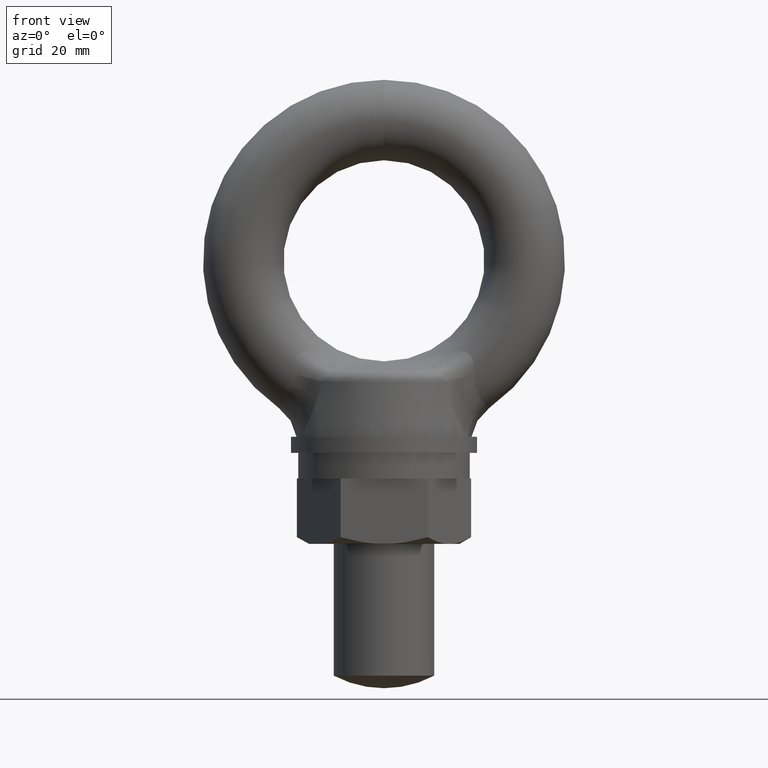
[diagram: clean part render]
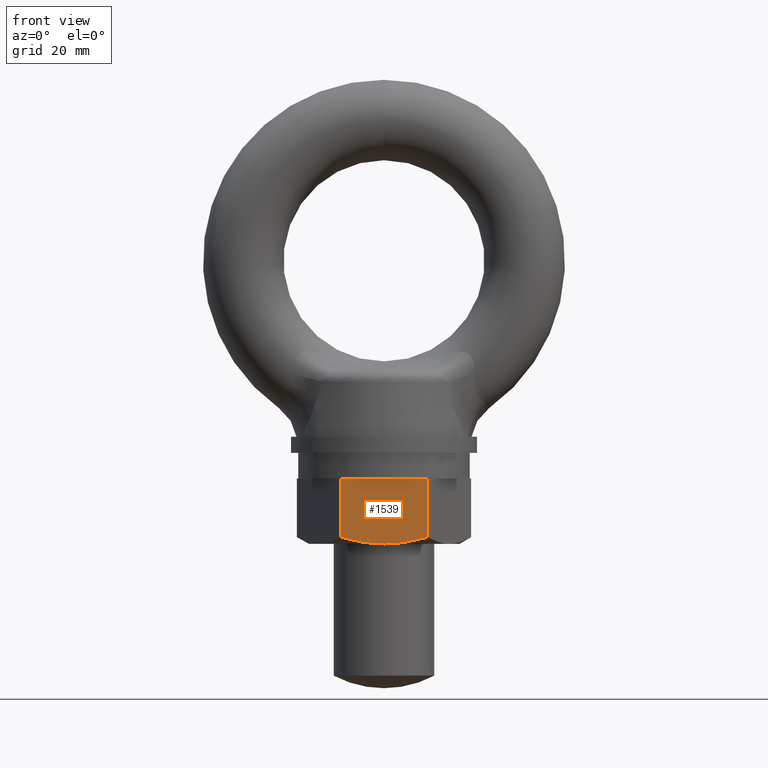
[diagram: same view with one face highlighted and labeled with its STEP entity id]
A machine part, front view. The second image highlights one B-rep face of the part: STEP entity #1539.
In plain terms, the highlighted planar face has unit normal (0, 1, 0).
Its self-contained STEP definition (entity closure, byte-faithful):
#1441 = EDGE_CURVE ( 'NONE', #1485, #1509, #1848, .T. ) ;
#1462 = VERTEX_POINT ( 'NONE', #2143 ) ;
#1466 = ORIENTED_EDGE ( 'NONE', *, *, #1441, .F. ) ;
#1482 = EDGE_CURVE ( 'NONE', #1485, #1483, #2201, .T. ) ;
#1483 = VERTEX_POINT ( 'NONE', #2192 ) ;
#1485 = VERTEX_POINT ( 'NONE', #2190 ) ;
#1502 = ORIENTED_EDGE ( 'NONE', *, *, #1503, .F. ) ;
#1503 = EDGE_CURVE ( 'NONE', #1514, #1483, #2152, .T. ) ;
#1506 = EDGE_LOOP ( 'NONE', ( #1540, #1507, #1466, #1549, #1502 ) ) ;
#1507 = ORIENTED_EDGE ( 'NONE', *, *, #1508, .F. ) ;
#1508 = EDGE_CURVE ( 'NONE', #1509, #1462, #2304, .T. ) ;
#1509 = VERTEX_POINT ( 'NONE', #2292 ) ;
#1514 = VERTEX_POINT ( 'NONE', #2290 ) ;
#1536 = EDGE_CURVE ( 'NONE', #1462, #1514, #2163, .T. ) ;
#1539 = ADVANCED_FACE ( 'NONE', ( #2244 ), #2240, .F. ) ;
#1540 = ORIENTED_EDGE ( 'NONE', *, *, #1536, .F. ) ;
#1549 = ORIENTED_EDGE ( 'NONE', *, *, #1482, .T. ) ;
#1845 = DIRECTION ( 'NONE',  ( 1.000000000000000000, 0.0000000000000000000, 0.0000000000000000000 ) ) ;
#1846 = VECTOR ( 'NONE', #1845, 1000.000000000000000 ) ;
#1847 = CARTESIAN_POINT ( 'NONE',  ( -8.660253999999998300, -15.00000000000000000, -43.29999900000014900 ) ) ;
#1848 = LINE ( 'NONE', #1847, #1846 ) ;
#2143 = CARTESIAN_POINT ( 'NONE',  ( 8.660253999999998300, -15.00000000000000000, -54.96025704876919300 ) ) ;
#2151 = CARTESIAN_POINT ( 'NONE',  ( 0.0000000000000000000, -15.00000000000000000, -56.30000300000009600 ) ) ;
#2152 = B_SPLINE_CURVE_WITH_KNOTS ( 'NONE', 3,
 ( #2151, #2310, #2309, #2308, #2307, #2306 ),
 .UNSPECIFIED., .F., .F.,
 ( 4, 2, 4 ),
 ( 0.04779124132650731200, 0.05217642100845698600, 0.05656160069040665900 ),
 .UNSPECIFIED. ) ;
#2163 = B_SPLINE_CURVE_WITH_KNOTS ( 'NONE', 3,
 ( #2252, #2251, #2250, #2249, #2248, #2247, #2246, #2245 ),
 .UNSPECIFIED., .F., .F.,
 ( 4, 2, 2, 4 ),
 ( 0.03901490623446082800, 0.04340307378048406700, 0.04559715755349569300, 0.04779124132650731200 ),
 .UNSPECIFIED. ) ;
#2190 = CARTESIAN_POINT ( 'NONE',  ( -8.660253999999998300, -15.00000000000000000, -43.29999900000014900 ) ) ;
#2192 = CARTESIAN_POINT ( 'NONE',  ( -8.660253999999998300, -15.00000000000000000, -54.96025704876919300 ) ) ;
#2193 = DIRECTION ( 'NONE',  ( 0.0000000000000000000, 0.0000000000000000000, -1.000000000000000000 ) ) ;
#2194 = VECTOR ( 'NONE', #2193, 1000.000000000000000 ) ;
#2195 = CARTESIAN_POINT ( 'NONE',  ( -8.660253999999998300, -15.00000000000000000, 943.6999969999999400 ) ) ;
#2201 = LINE ( 'NONE', #2195, #2194 ) ;
#2236 = DIRECTION ( 'NONE',  ( 0.0000000000000000000, 0.0000000000000000000, 1.000000000000000000 ) ) ;
#2237 = DIRECTION ( 'NONE',  ( 0.0000000000000000000, 1.000000000000000000, 0.0000000000000000000 ) ) ;
#2238 = CARTESIAN_POINT ( 'NONE',  ( -8.660253999999998300, -15.00000000000000000, 943.6999969999999400 ) ) ;
#2239 = AXIS2_PLACEMENT_3D ( 'NONE', #2238, #2237, #2236 ) ;
#2240 = PLANE ( 'NONE',  #2239 ) ;
#2244 = FACE_OUTER_BOUND ( 'NONE', #1506, .T. ) ;
#2245 = CARTESIAN_POINT ( 'NONE',  ( 0.0000000000000000000, -15.00000000000000000, -56.30000300000009600 ) ) ;
#2246 = CARTESIAN_POINT ( 'NONE',  ( 0.7327011086299636300, -15.00000000000000200, -56.30000300000008900 ) ) ;
#2247 = CARTESIAN_POINT ( 'NONE',  ( 1.468331681756608600, -15.00000000000000000, -56.26881246783327100 ) ) ;
#2248 = CARTESIAN_POINT ( 'NONE',  ( 2.943301964262833500, -15.00000000000000200, -56.14491709987431300 ) ) ;
#2249 = CARTESIAN_POINT ( 'NONE',  ( 3.672874707161993600, -15.00000000000000000, -56.05316407389835800 ) ) ;
#2250 = CARTESIAN_POINT ( 'NONE',  ( 5.841206664520827400, -14.99999999999999800, -55.70111161903209100 ) ) ;
#2251 = CARTESIAN_POINT ( 'NONE',  ( 7.259722152322114000, -14.99999999999999800, -55.36455576707690800 ) ) ;
#2252 = CARTESIAN_POINT ( 'NONE',  ( 8.660253999999998300, -15.00000000000000000, -54.96025704876919300 ) ) ;
#2290 = CARTESIAN_POINT ( 'NONE',  ( 0.0000000000000000000, -15.00000000000000000, -56.30000300000009600 ) ) ;
#2292 = CARTESIAN_POINT ( 'NONE',  ( 8.660253999999998300, -15.00000000000000000, -43.29999900000014900 ) ) ;
#2293 = DIRECTION ( 'NONE',  ( 0.0000000000000000000, 0.0000000000000000000, -1.000000000000000000 ) ) ;
#2302 = VECTOR ( 'NONE', #2293, 1000.000000000000000 ) ;
#2303 = CARTESIAN_POINT ( 'NONE',  ( 8.660253999999998300, -15.00000000000000000, 943.6999969999999400 ) ) ;
#2304 = LINE ( 'NONE', #2303, #2302 ) ;
#2306 = CARTESIAN_POINT ( 'NONE',  ( -8.660253999999998300, -15.00000000000000000, -54.96025704876919300 ) ) ;
#2307 = CARTESIAN_POINT ( 'NONE',  ( -7.250773704282158500, -15.00000000000000200, -55.36713896151079000 ) ) ;
#2308 = CARTESIAN_POINT ( 'NONE',  ( -5.808530979648736500, -15.00000000000000000, -55.70798355773236900 ) ) ;
#2309 = CARTESIAN_POINT ( 'NONE',  ( -2.918366813997370200, -15.00000000000000400, -56.17406471936622100 ) ) ;
#2310 = CARTESIAN_POINT ( 'NONE',  ( -1.464404437983628500, -15.00000000000000000, -56.30000300000009600 ) ) ;